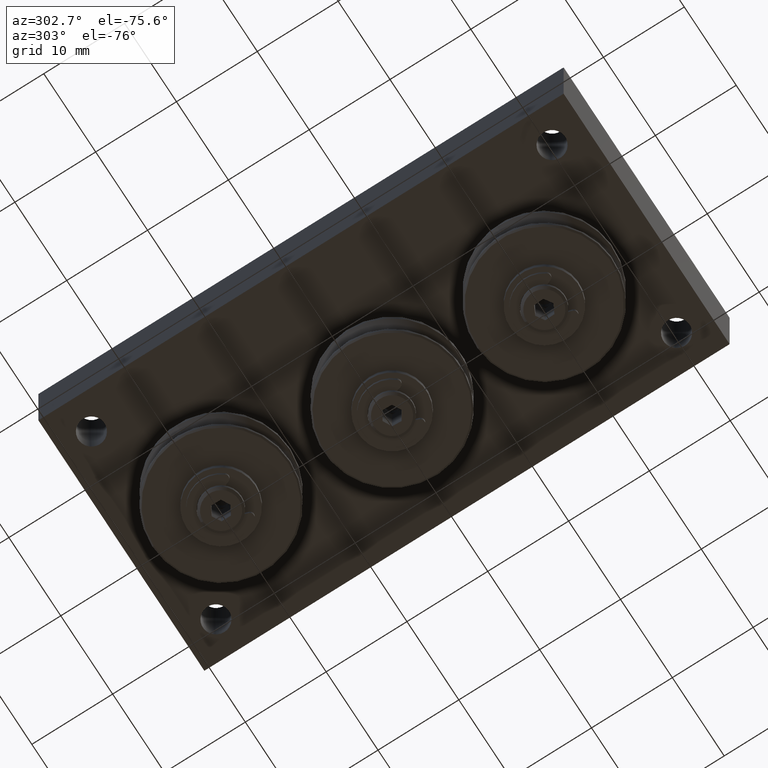
[diagram: clean part render]
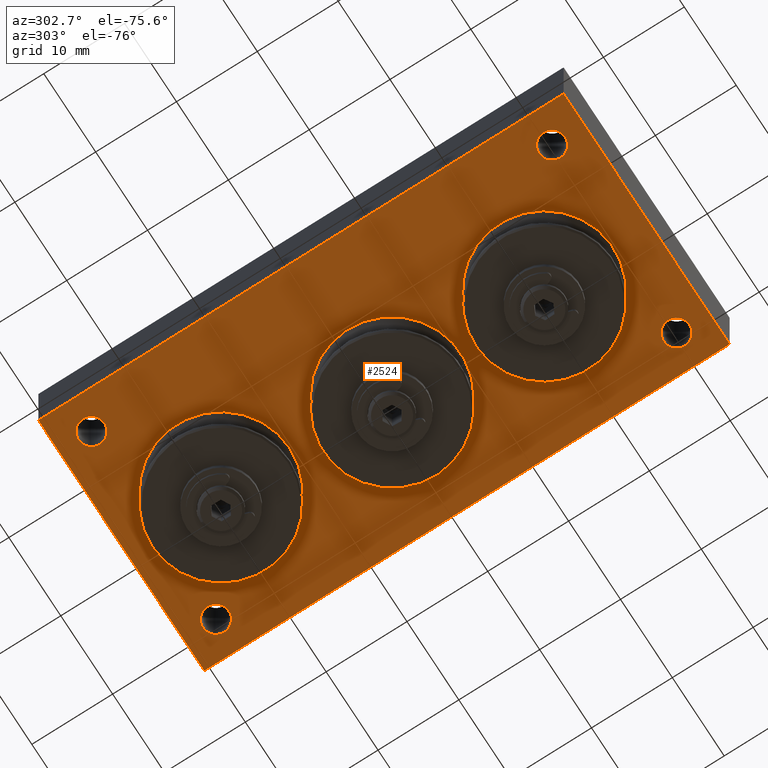
[diagram: same view with one face highlighted and labeled with its STEP entity id]
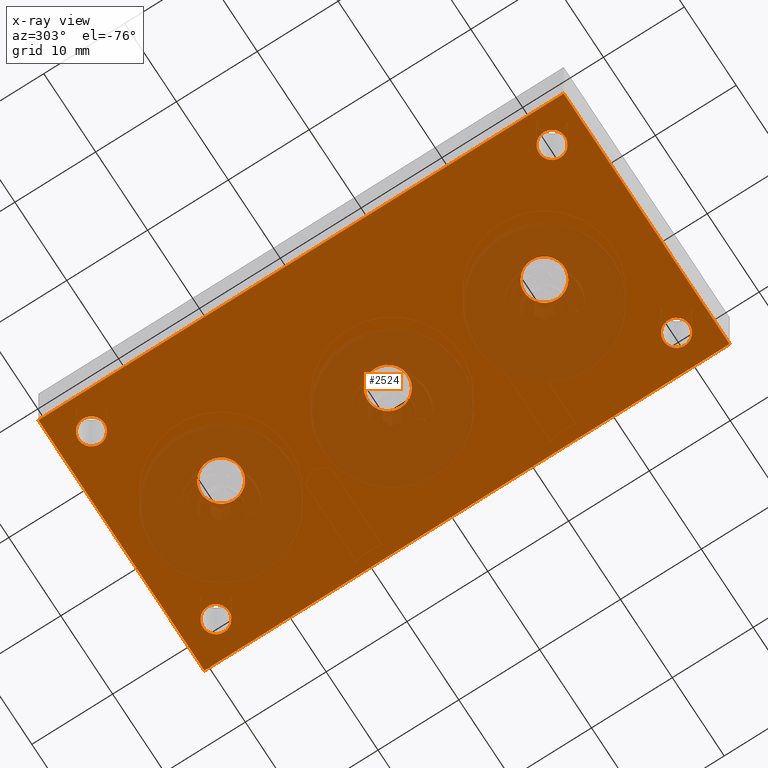
[diagram: x-ray of the same camera — body ghosted, the highlighted face saturated]
A machine part, auxiliary view. The second image highlights one B-rep face of the part: STEP entity #2524.
The next image is the same camera in x-ray: the body ghosted, the highlighted face saturated — about 31% of this face is hidden behind the body in this view.
In plain terms, the highlighted planar face has unit normal (0, 0, 1).
Its self-contained STEP definition (entity closure, byte-faithful):
#120=FACE_BOUND('',#477,.T.);
#121=FACE_BOUND('',#478,.T.);
#122=FACE_BOUND('',#479,.T.);
#123=FACE_BOUND('',#480,.T.);
#124=FACE_BOUND('',#481,.T.);
#125=FACE_BOUND('',#482,.T.);
#126=FACE_BOUND('',#483,.T.);
#153=PLANE('',#2903);
#304=FACE_OUTER_BOUND('',#476,.T.);
#476=EDGE_LOOP('',(#1857,#1858,#1859,#1860));
#477=EDGE_LOOP('',(#1861));
#478=EDGE_LOOP('',(#1862));
#479=EDGE_LOOP('',(#1863));
#480=EDGE_LOOP('',(#1864));
#481=EDGE_LOOP('',(#1865));
#482=EDGE_LOOP('',(#1866));
#483=EDGE_LOOP('',(#1867));
#655=LINE('',#4125,#857);
#659=LINE('',#4132,#861);
#662=LINE('',#4138,#864);
#664=LINE('',#4141,#866);
#857=VECTOR('',#3285,10.);
#861=VECTOR('',#3291,10.);
#864=VECTOR('',#3296,10.);
#866=VECTOR('',#3300,10.);
#1050=CIRCLE('',#2871,2.5);
#1054=CIRCLE('',#2878,2.5);
#1058=CIRCLE('',#2885,2.5);
#1060=CIRCLE('',#2888,1.621);
#1062=CIRCLE('',#2891,1.621);
#1064=CIRCLE('',#2894,1.621);
#1066=CIRCLE('',#2897,1.621);
#1194=VERTEX_POINT('',#4065);
#1198=VERTEX_POINT('',#4078);
#1202=VERTEX_POINT('',#4091);
#1204=VERTEX_POINT('',#4097);
#1206=VERTEX_POINT('',#4103);
#1208=VERTEX_POINT('',#4109);
#1210=VERTEX_POINT('',#4115);
#1213=VERTEX_POINT('',#4122);
#1214=VERTEX_POINT('',#4124);
#1216=VERTEX_POINT('',#4130);
#1218=VERTEX_POINT('',#4136);
#1425=EDGE_CURVE('',#1194,#1194,#1050,.T.);
#1431=EDGE_CURVE('',#1198,#1198,#1054,.T.);
#1437=EDGE_CURVE('',#1202,#1202,#1058,.T.);
#1440=EDGE_CURVE('',#1204,#1204,#1060,.T.);
#1443=EDGE_CURVE('',#1206,#1206,#1062,.T.);
#1446=EDGE_CURVE('',#1208,#1208,#1064,.T.);
#1449=EDGE_CURVE('',#1210,#1210,#1066,.T.);
#1452=EDGE_CURVE('',#1214,#1213,#655,.T.);
#1456=EDGE_CURVE('',#1213,#1216,#659,.T.);
#1459=EDGE_CURVE('',#1216,#1218,#662,.T.);
#1461=EDGE_CURVE('',#1218,#1214,#664,.T.);
#1857=ORIENTED_EDGE('',*,*,#1461,.T.);
#1858=ORIENTED_EDGE('',*,*,#1452,.T.);
#1859=ORIENTED_EDGE('',*,*,#1456,.T.);
#1860=ORIENTED_EDGE('',*,*,#1459,.T.);
#1861=ORIENTED_EDGE('',*,*,#1425,.T.);
#1862=ORIENTED_EDGE('',*,*,#1431,.T.);
#1863=ORIENTED_EDGE('',*,*,#1437,.T.);
#1864=ORIENTED_EDGE('',*,*,#1440,.T.);
#1865=ORIENTED_EDGE('',*,*,#1443,.T.);
#1866=ORIENTED_EDGE('',*,*,#1446,.T.);
#1867=ORIENTED_EDGE('',*,*,#1449,.T.);
#2524=ADVANCED_FACE('',(#304,#120,#121,#122,#123,#124,#125,#126),#153,.F.);
#2871=AXIS2_PLACEMENT_3D('',#4067,#3219,#3220);
#2878=AXIS2_PLACEMENT_3D('',#4080,#3235,#3236);
#2885=AXIS2_PLACEMENT_3D('',#4093,#3251,#3252);
#2888=AXIS2_PLACEMENT_3D('',#4099,#3258,#3259);
#2891=AXIS2_PLACEMENT_3D('',#4105,#3265,#3266);
#2894=AXIS2_PLACEMENT_3D('',#4111,#3272,#3273);
#2897=AXIS2_PLACEMENT_3D('',#4117,#3279,#3280);
#2903=AXIS2_PLACEMENT_3D('',#4143,#3303,#3304);
#3219=DIRECTION('center_axis',(0.,0.,1.));
#3220=DIRECTION('ref_axis',(1.,0.,0.));
#3235=DIRECTION('center_axis',(0.,0.,1.));
#3236=DIRECTION('ref_axis',(1.,0.,0.));
#3251=DIRECTION('center_axis',(0.,0.,1.));
#3252=DIRECTION('ref_axis',(1.,0.,0.));
#3258=DIRECTION('center_axis',(0.,0.,1.));
#3259=DIRECTION('ref_axis',(1.,0.,0.));
#3265=DIRECTION('center_axis',(0.,0.,1.));
#3266=DIRECTION('ref_axis',(1.,0.,0.));
#3272=DIRECTION('center_axis',(0.,0.,1.));
#3273=DIRECTION('ref_axis',(1.,0.,0.));
#3279=DIRECTION('center_axis',(0.,0.,1.));
#3280=DIRECTION('ref_axis',(1.,0.,0.));
#3285=DIRECTION('',(0.,-1.,0.));
#3291=DIRECTION('',(-1.,0.,0.));
#3296=DIRECTION('',(0.,1.,0.));
#3300=DIRECTION('',(1.,0.,0.));
#3303=DIRECTION('center_axis',(0.,0.,1.));
#3304=DIRECTION('ref_axis',(1.,0.,0.));
#4065=CARTESIAN_POINT('',(-1.75,-3.06161699786838E-16,0.));
#4067=CARTESIAN_POINT('Origin',(0.749999999999997,0.,0.));
#4078=CARTESIAN_POINT('',(-2.75,-20.,0.));
#4080=CARTESIAN_POINT('Origin',(-0.250000000000001,-20.,0.));
#4091=CARTESIAN_POINT('',(-2.75,20.,0.));
#4093=CARTESIAN_POINT('Origin',(-0.250000000000001,20.,0.));
#4097=CARTESIAN_POINT('',(-13.621,-28.5,0.));
#4099=CARTESIAN_POINT('Origin',(-12.,-28.5,0.));
#4103=CARTESIAN_POINT('',(10.379,-28.5,0.));
#4105=CARTESIAN_POINT('Origin',(12.,-28.5,0.));
#4109=CARTESIAN_POINT('',(10.379,28.5,0.));
#4111=CARTESIAN_POINT('Origin',(12.,28.5,0.));
#4115=CARTESIAN_POINT('',(-13.621,28.5,0.));
#4117=CARTESIAN_POINT('Origin',(-12.,28.5,0.));
#4122=CARTESIAN_POINT('',(16.,-32.5,0.));
#4124=CARTESIAN_POINT('',(16.,32.5,0.));
#4125=CARTESIAN_POINT('',(16.,32.5,0.));
#4130=CARTESIAN_POINT('',(-16.,-32.5,0.));
#4132=CARTESIAN_POINT('',(16.,-32.5,0.));
#4136=CARTESIAN_POINT('',(-16.,32.5,0.));
#4138=CARTESIAN_POINT('',(-16.,-32.5,0.));
#4141=CARTESIAN_POINT('',(-16.,32.5,0.));
#4143=CARTESIAN_POINT('Origin',(0.,2.705323209021E-16,0.));